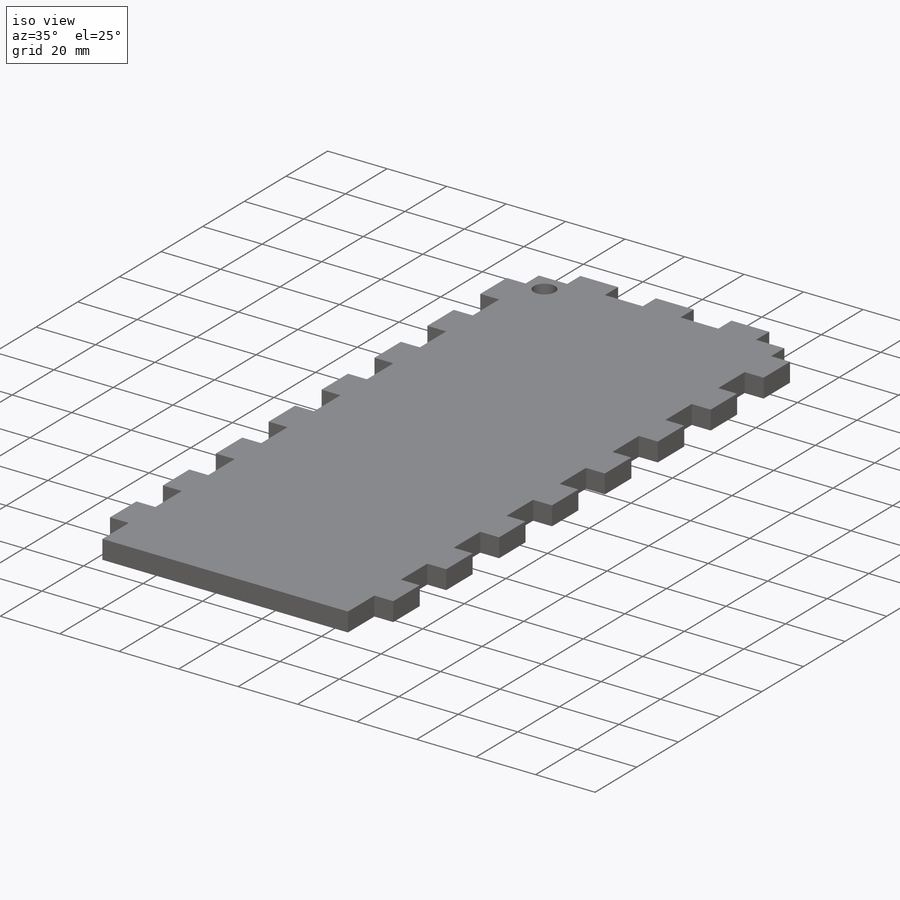
[diagram: iso view]
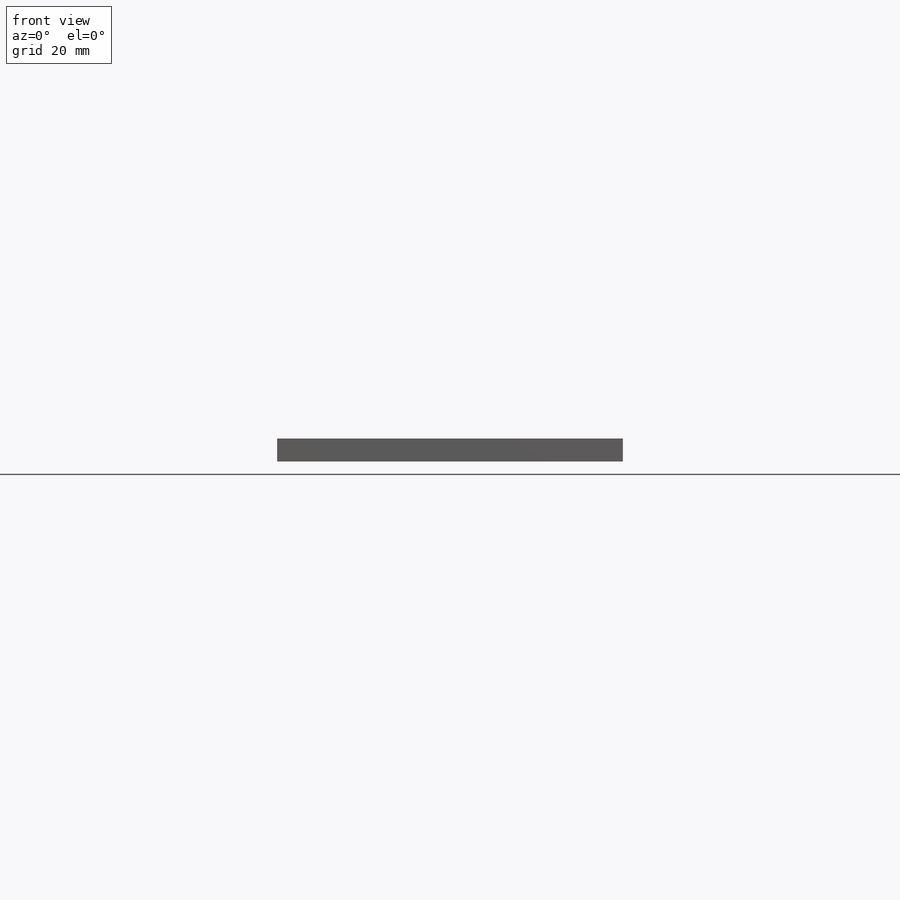
[diagram: front view]
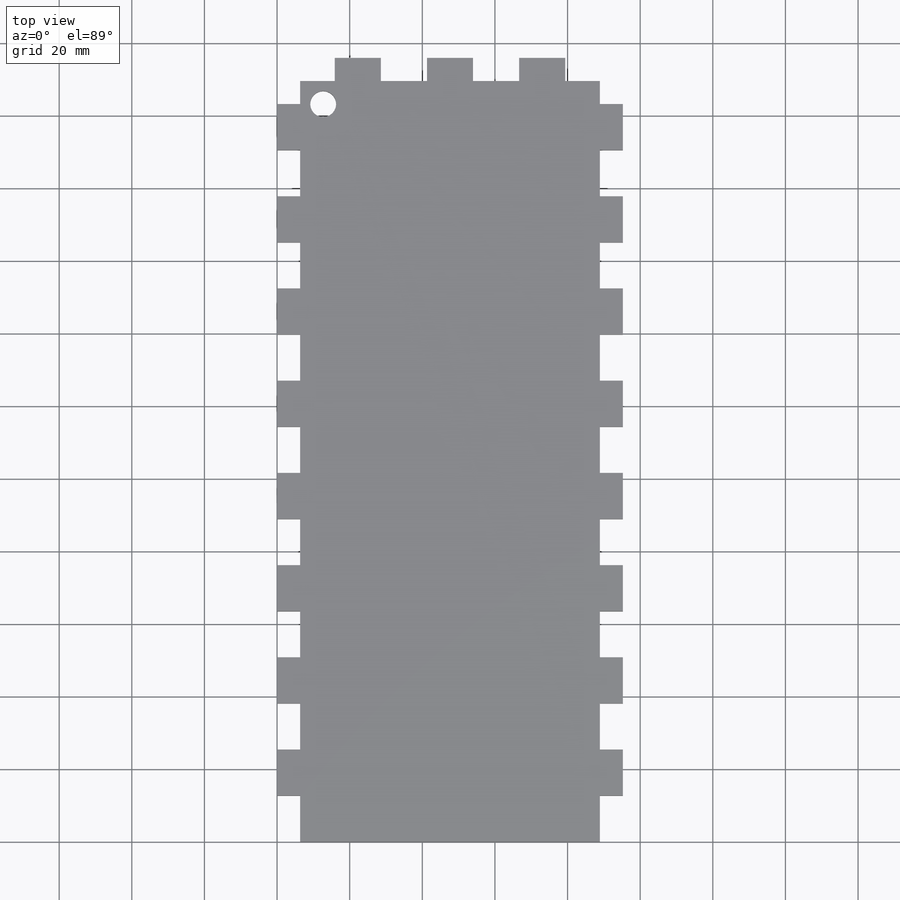
[diagram: top view]
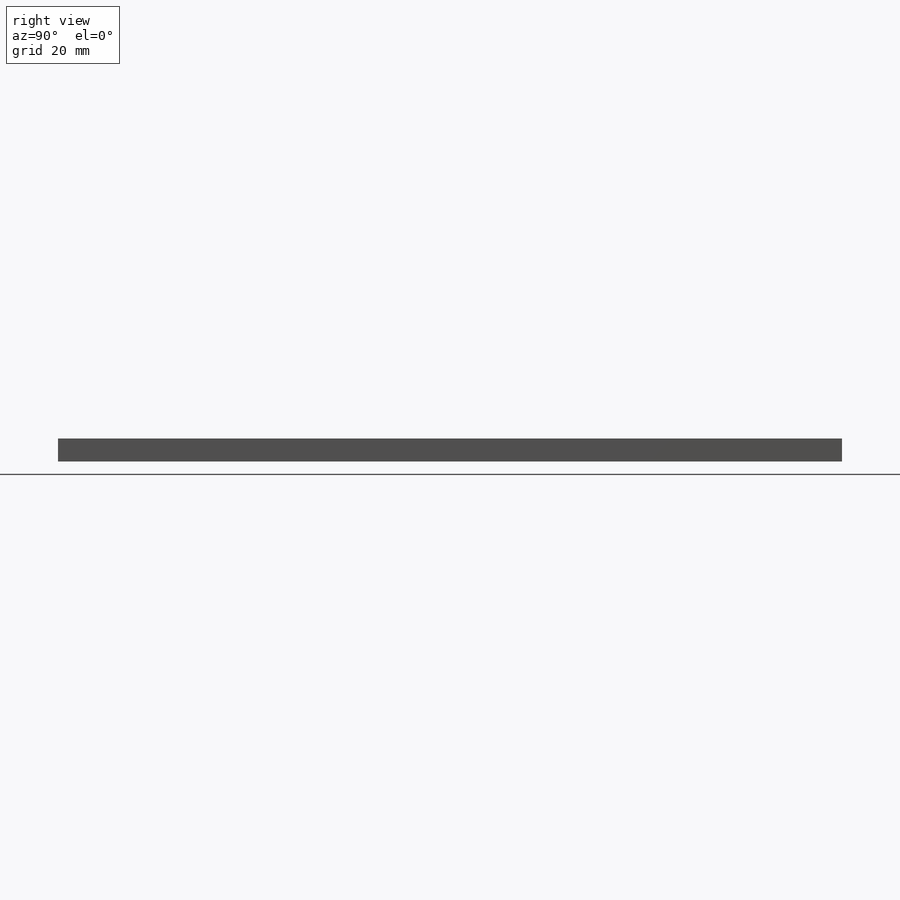
[diagram: right view]
SOLIDWORKS PART (.sldprt)
format: sldprt  version: not decoded by parser v0  size: 480,256 bytes
history: native  units: mm
features: sketch x4, cut_extrude x3, pattern_linear x2, material x1, extrude x1 (+13 scaffold rows collapsed)
feature tree (24):
  scaffold x13  (default folders/planes/origin — collapsed)
  material  "Pine"
  sketch  "Sketch1"  dims[D1=95.25mm D2=215.9mm]
  extrude  "Boss-Extrude1"  Depth=6.35mm
  sketch  "Sketch2"  dims[D1=6.35mm D2=12.7mm]
  cut_extrude  "Cut-Extrude1"  [1 undecoded]
  pattern_linear  "LPattern1"  Count1=10 Count2=1 Spacing1=25.4mm Spacing2=2.54mm
  sketch  "Sketch3"  dims[D1=6.35mm D2=6.35mm D3=12.7mm]
  cut_extrude  "Cut-Extrude2"  [1 undecoded]
  pattern_linear  "LPattern2"  Count1=2 Count2=3 Spacing1=25.4mm Spacing2=25.4mm
  sketch  "Sketch4"  dims[D1=~7.14375mm D2=6.35mm D3=6.35mm]
  cut_extrude  "Cut-Extrude3"  [1 undecoded]
decode coverage: 7 of 10 modeling features carry decoded parameters
note: ~ marks probable driven/reference dimensions
note: 3 parameter values undecoded
summary: no parameter record found for 3 features
note: suppression state not decoded; provenance and decode notes live in map.json
